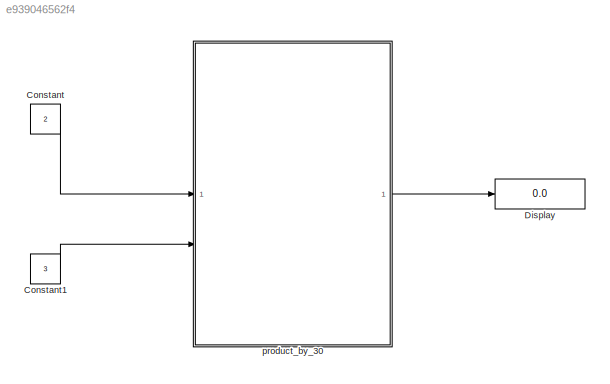
MODEL slx_e939046562f4
KIND model
CONFIG AbsTol = auto
CONFIG EnableMultiTasking = off
CONFIG FixedStep = auto
CONFIG MaxStep = auto
CONFIG MinStep = auto
CONFIG RelTol = 1e-3
CONFIG SampleTimeConstraint = Unconstrained
CONFIG SolverName = FixedStepDiscrete
CONFIG StartTime = 0.0
CONFIG StopTime = 20/100e6
BLOCK [Constant] Constant
  OutDataTypeStr = uint16
  SampleTime = 1/100e6
  Value = 2
BLOCK [Constant] Constant1
  OutDataTypeStr = uint16
  SampleTime = 1/100e6
  Value = 3
BLOCK [Display] Display
  Decimation = 1
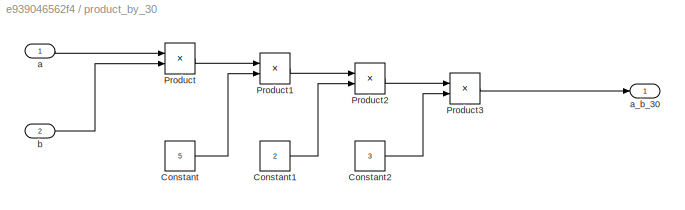
BLOCK [SubSystem] product_by_30
  TreatAsAtomicUnit = on
BLOCK [Constant] product_by_30/Constant
  OutDataTypeStr = uint8
  SampleTime = -1
  Value = 5
BLOCK [Constant] product_by_30/Constant1
  OutDataTypeStr = uint8
  SampleTime = -1
  Value = 2
BLOCK [Constant] product_by_30/Constant2
  OutDataTypeStr = uint8
  SampleTime = -1
  Value = 3
BLOCK [Product] product_by_30/Product
  OutDataTypeStr = uint16
BLOCK [Product] product_by_30/Product1
  OutDataTypeStr = uint16
BLOCK [Product] product_by_30/Product2
  OutDataTypeStr = uint16
BLOCK [Product] product_by_30/Product3
  OutDataTypeStr = uint16
BLOCK [Inport] product_by_30/a
BLOCK [Outport] product_by_30/a_b_30
BLOCK [Inport] product_by_30/b
  Port = 2
LINE Constant1:1 -> product_by_30:2
LINE Constant:1 -> product_by_30:1
LINE product_by_30/Constant1:1 -> product_by_30/Product2:2
LINE product_by_30/Constant2:1 -> product_by_30/Product3:2
LINE product_by_30/Constant:1 -> product_by_30/Product1:2
LINE product_by_30/Product1:1 -> product_by_30/Product2:1
LINE product_by_30/Product2:1 -> product_by_30/Product3:1
LINE product_by_30/Product3:1 -> product_by_30/a_b_30:1
LINE product_by_30/Product:1 -> product_by_30/Product1:1
LINE product_by_30/a:1 -> product_by_30/Product:1
LINE product_by_30/b:1 -> product_by_30/Product:2
LINE product_by_30:1 -> Display:1
